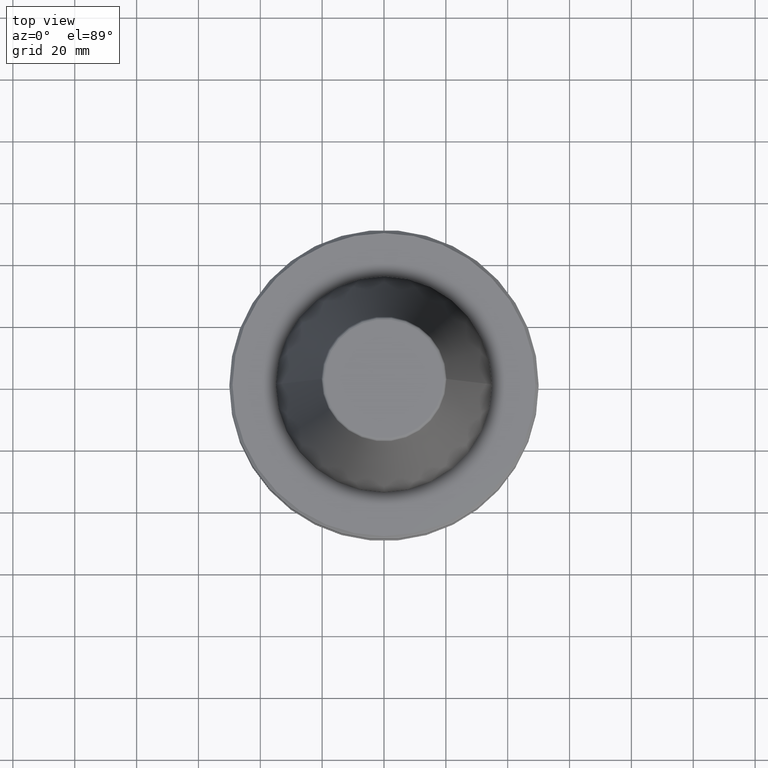
[diagram: clean part render]
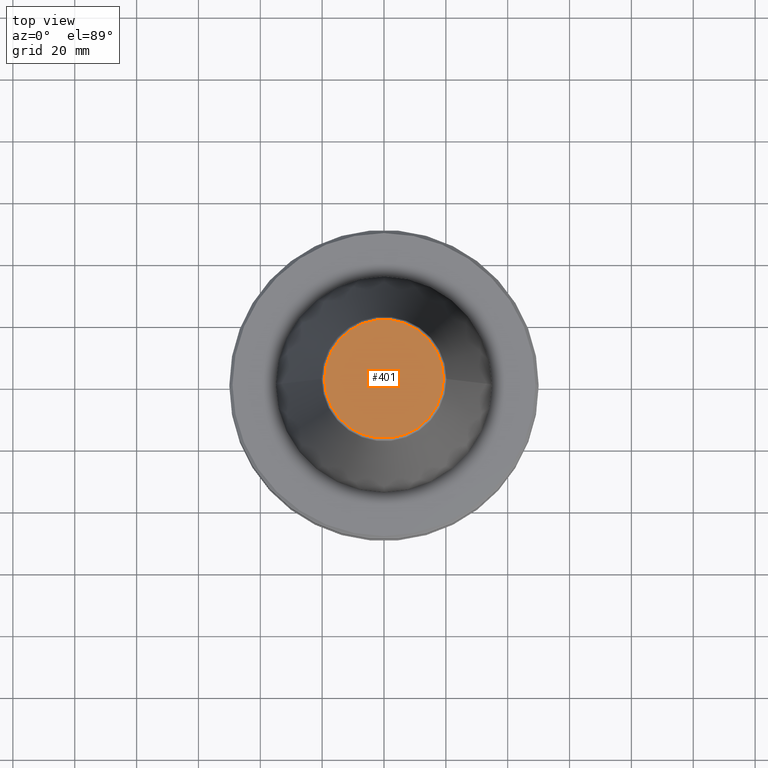
[diagram: same view with one face highlighted and labeled with its STEP entity id]
A machine part, top view. The second image highlights one B-rep face of the part: STEP entity #401.
In plain terms, the highlighted planar face has unit normal (0, 0, -1).
Its self-contained STEP definition (entity closure, byte-faithful):
#72 = EDGE_LOOP ( 'NONE', ( #850, #423 ) ) ;
#188 = FACE_OUTER_BOUND ( 'NONE', #72, .T. ) ;
#238 = DIRECTION ( 'NONE',  ( 0.0000000000000000000, 0.0000000000000000000, -1.000000000000000000 ) ) ;
#253 = DIRECTION ( 'NONE',  ( -0.0000000000000000000, -0.0000000000000000000, 1.000000000000000000 ) ) ;
#277 = DIRECTION ( 'NONE',  ( -0.0000000000000000000, -0.0000000000000000000, 1.000000000000000000 ) ) ;
#281 = AXIS2_PLACEMENT_3D ( 'NONE', #498, #277, #679 ) ;
#305 = CARTESIAN_POINT ( 'NONE',  ( 19.21428326503027200, 0.0000000000000000000, 101.7999999999999800 ) ) ;
#325 = VERTEX_POINT ( 'NONE', #419 ) ;
#334 = DIRECTION ( 'NONE',  ( 1.000000000000000000, 0.0000000000000000000, 0.0000000000000000000 ) ) ;
#348 = CARTESIAN_POINT ( 'NONE',  ( 0.0000000000000000000, 0.0000000000000000000, 101.7999999999999800 ) ) ;
#355 = DIRECTION ( 'NONE',  ( -1.000000000000000000, 0.0000000000000000000, -0.0000000000000000000 ) ) ;
#401 = ADVANCED_FACE ( 'NONE', ( #188 ), #812, .F. ) ;
#419 = CARTESIAN_POINT ( 'NONE',  ( -19.21428326503027200, 2.413662457824437800E-015, 101.7999999999999800 ) ) ;
#423 = ORIENTED_EDGE ( 'NONE', *, *, #505, .T. ) ;
#498 = CARTESIAN_POINT ( 'NONE',  ( 0.0000000000000000000, 0.0000000000000000000, 101.7999999999999800 ) ) ;
#505 = EDGE_CURVE ( 'NONE', #325, #711, #904, .T. ) ;
#577 = EDGE_CURVE ( 'NONE', #711, #325, #829, .T. ) ;
#678 = AXIS2_PLACEMENT_3D ( 'NONE', #996, #238, #355 ) ;
#679 = DIRECTION ( 'NONE',  ( 1.000000000000000000, 0.0000000000000000000, 0.0000000000000000000 ) ) ;
#711 = VERTEX_POINT ( 'NONE', #305 ) ;
#812 = PLANE ( 'NONE',  #678 ) ;
#829 = CIRCLE ( 'NONE', #973, 19.21428326503027200 ) ;
#850 = ORIENTED_EDGE ( 'NONE', *, *, #577, .T. ) ;
#904 = CIRCLE ( 'NONE', #281, 19.21428326503027200 ) ;
#973 = AXIS2_PLACEMENT_3D ( 'NONE', #348, #253, #334 ) ;
#996 = CARTESIAN_POINT ( 'NONE',  ( 0.0000000000000000000, 0.0000000000000000000, 101.8000000000000000 ) ) ;